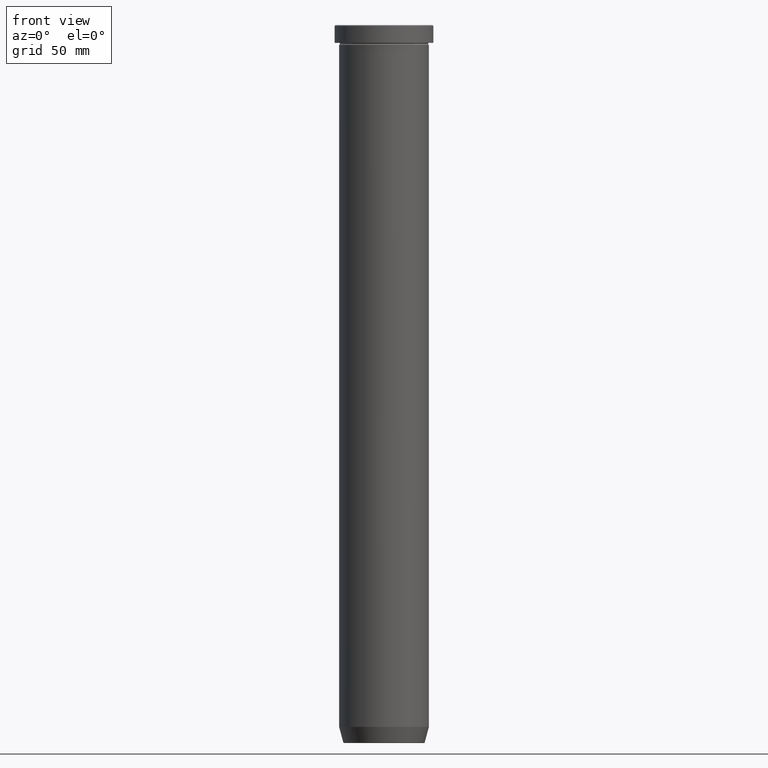
[diagram: clean part render]
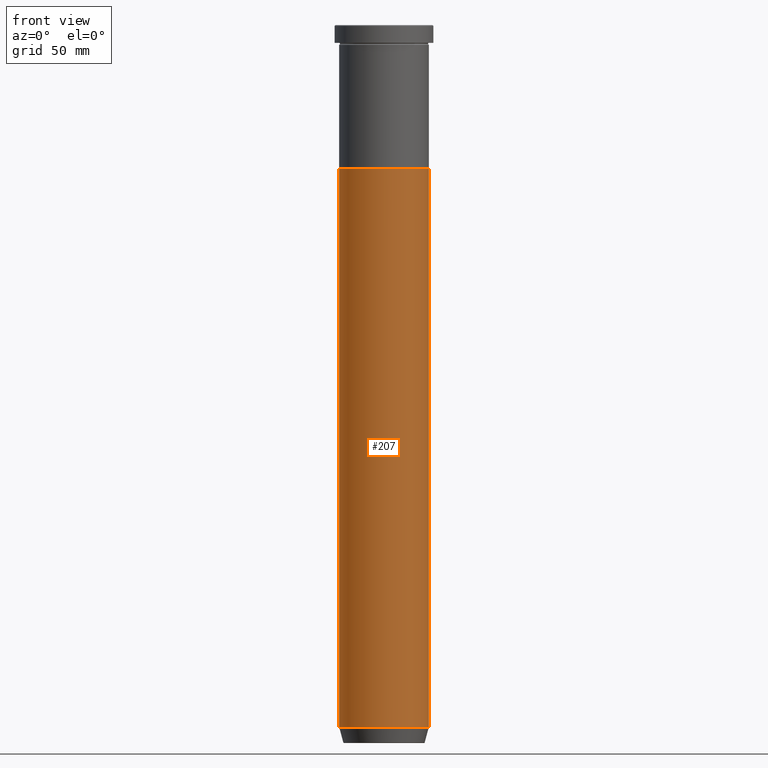
[diagram: same view with one face highlighted and labeled with its STEP entity id]
A machine part, front view. The second image highlights one B-rep face of the part: STEP entity #207.
In plain terms, the highlighted cylindrical surface (partial cylindrical patch) has radius 25 mm, axis along (-0, -0, 1).
Its self-contained STEP definition (entity closure, byte-faithful):
#37 = ORIENTED_EDGE ( 'NONE', *, *, #567, .F. ) ;
#67 = DIRECTION ( 'NONE',  ( -0.000000000000000000, -0.000000000000000000, 1.000000000000000000 ) ) ;
#72 = DIRECTION ( 'NONE',  ( -0.000000000000000000, -0.000000000000000000, 1.000000000000000000 ) ) ;
#80 = VERTEX_POINT ( 'NONE', #535 ) ;
#91 = CIRCLE ( 'NONE', #195, 25.00000000000000000 ) ;
#93 = EDGE_CURVE ( 'NONE', #80, #469, #306, .T. ) ;
#110 = CARTESIAN_POINT ( 'NONE',  ( 0.000000000000000000, 0.000000000000000000, -391.0000000000000000 ) ) ;
#118 = EDGE_CURVE ( 'NONE', #469, #412, #247, .T. ) ;
#122 = CARTESIAN_POINT ( 'NONE',  ( 0.000000000000000000, 0.000000000000000000, 0.000000000000000000 ) ) ;
#160 = DIRECTION ( 'NONE',  ( 1.000000000000000000, 0.000000000000000000, 0.000000000000000000 ) ) ;
#186 = CARTESIAN_POINT ( 'NONE',  ( -25.00000000000000000, 3.061616997868383043E-15, 0.000000000000000000 ) ) ;
#195 = AXIS2_PLACEMENT_3D ( 'NONE', #311, #354, #160 ) ;
#207 = ADVANCED_FACE ( 'NONE', ( #350 ), #575, .T. ) ;
#243 = AXIS2_PLACEMENT_3D ( 'NONE', #110, #572, #304 ) ;
#244 = VECTOR ( 'NONE', #67, 1000.000000000000000 ) ;
#247 = LINE ( 'NONE', #393, #282 ) ;
#254 = AXIS2_PLACEMENT_3D ( 'NONE', #122, #72, #532 ) ;
#266 = ORIENTED_EDGE ( 'NONE', *, *, #118, .T. ) ;
#282 = VECTOR ( 'NONE', #345, 1000.000000000000000 ) ;
#290 = EDGE_CURVE ( 'NONE', #588, #412, #91, .T. ) ;
#304 = DIRECTION ( 'NONE',  ( 1.000000000000000000, 0.000000000000000000, 0.000000000000000000 ) ) ;
#306 = CIRCLE ( 'NONE', #243, 25.00000000000000000 ) ;
#311 = CARTESIAN_POINT ( 'NONE',  ( 0.000000000000000000, 0.000000000000000000, -80.00000000000000000 ) ) ;
#345 = DIRECTION ( 'NONE',  ( -0.000000000000000000, -0.000000000000000000, 1.000000000000000000 ) ) ;
#350 = FACE_OUTER_BOUND ( 'NONE', #468, .T. ) ;
#354 = DIRECTION ( 'NONE',  ( -0.000000000000000000, -0.000000000000000000, 1.000000000000000000 ) ) ;
#393 = CARTESIAN_POINT ( 'NONE',  ( 25.00000000000000000, 0.000000000000000000, 0.000000000000000000 ) ) ;
#412 = VERTEX_POINT ( 'NONE', #421 ) ;
#421 = CARTESIAN_POINT ( 'NONE',  ( 25.00000000000000000, 0.000000000000000000, -80.00000000000000000 ) ) ;
#427 = CARTESIAN_POINT ( 'NONE',  ( -25.00000000000000000, 3.061616997868383043E-15, -80.00000000000000000 ) ) ;
#468 = EDGE_LOOP ( 'NONE', ( #37, #499, #266, #597 ) ) ;
#469 = VERTEX_POINT ( 'NONE', #557 ) ;
#485 = LINE ( 'NONE', #186, #244 ) ;
#499 = ORIENTED_EDGE ( 'NONE', *, *, #93, .T. ) ;
#532 = DIRECTION ( 'NONE',  ( 1.000000000000000000, 0.000000000000000000, 0.000000000000000000 ) ) ;
#535 = CARTESIAN_POINT ( 'NONE',  ( -25.00000000000000000, 3.061616997868383043E-15, -391.0000000000000000 ) ) ;
#557 = CARTESIAN_POINT ( 'NONE',  ( 25.00000000000000000, 0.000000000000000000, -391.0000000000000000 ) ) ;
#567 = EDGE_CURVE ( 'NONE', #80, #588, #485, .T. ) ;
#572 = DIRECTION ( 'NONE',  ( -0.000000000000000000, -0.000000000000000000, 1.000000000000000000 ) ) ;
#575 = CYLINDRICAL_SURFACE ( 'NONE', #254, 25.00000000000000000 ) ;
#588 = VERTEX_POINT ( 'NONE', #427 ) ;
#597 = ORIENTED_EDGE ( 'NONE', *, *, #290, .F. ) ;